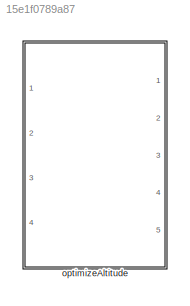
MODEL slx_15e1f0789a87
KIND library
CONFIG AbsTol = auto
CONFIG EnableMultiTasking = off
CONFIG FixedStep = auto
CONFIG MaxStep = auto
CONFIG MinStep = auto
CONFIG RelTol = 1e-3
CONFIG SampleTimeConstraint = Unconstrained
CONFIG SolverName = VariableStepAuto
CONFIG StartTime = 0.0
CONFIG StopTime = 10.0
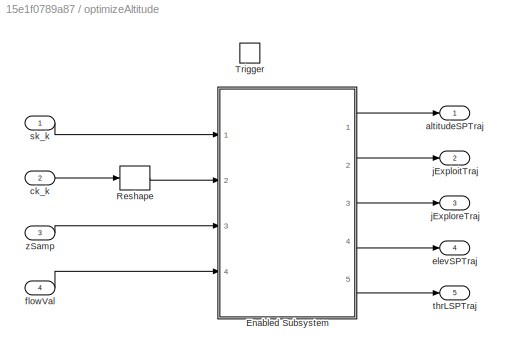
BLOCK [SubSystem] optimizeAltitude
  Ports = [4, 5, 0, 1]
  RequestExecContextInheritance = off
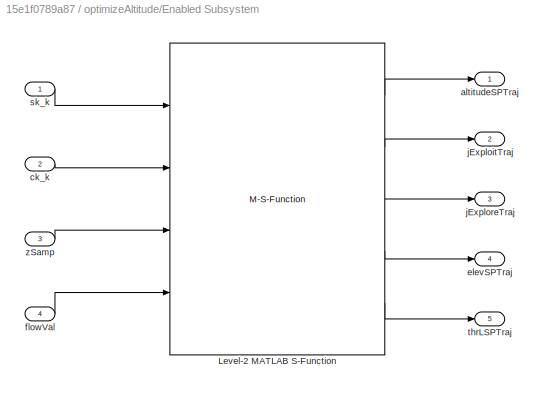
BLOCK [SubSystem] optimizeAltitude/Enabled Subsystem
  Ports = [4, 5]
  RequestExecContextInheritance = off
  TreatAsAtomicUnit = on
BLOCK [M-S-Function] optimizeAltitude/Enabled Subsystem/Level-2 MATLAB S-Function
  FunctionName = optimizeAltitude_Lvl2SFun
  Parameters = mpckfgp,hiLvlCtrl
  Ports = [4, 5]
BLOCK [Outport] optimizeAltitude/Enabled Subsystem/altitudeSPTraj
BLOCK [Inport] optimizeAltitude/Enabled Subsystem/ck_k
  Port = 2
BLOCK [Outport] optimizeAltitude/Enabled Subsystem/elevSPTraj
  Port = 4
BLOCK [Inport] optimizeAltitude/Enabled Subsystem/flowVal
  Port = 4
BLOCK [Outport] optimizeAltitude/Enabled Subsystem/jExploitTraj
  Port = 2
BLOCK [Outport] optimizeAltitude/Enabled Subsystem/jExploreTraj
  Port = 3
BLOCK [Inport] optimizeAltitude/Enabled Subsystem/sk_k
BLOCK [Outport] optimizeAltitude/Enabled Subsystem/thrLSPTraj
  Port = 5
BLOCK [Inport] optimizeAltitude/Enabled Subsystem/zSamp
  Port = 3
BLOCK [Reshape] optimizeAltitude/Reshape
  OutputDimensionality = Column vector (2-D)
  Ports = [1, 1]
BLOCK [TriggerPort] optimizeAltitude/Trigger
  Ports = []
  StatesWhenEnabling = held
  VariantControl = Variant
BLOCK [Outport] optimizeAltitude/altitudeSPTraj
BLOCK [Inport] optimizeAltitude/ck_k
  Port = 2
BLOCK [Outport] optimizeAltitude/elevSPTraj
  Port = 4
BLOCK [Inport] optimizeAltitude/flowVal
  Port = 4
BLOCK [Outport] optimizeAltitude/jExploitTraj
  Port = 2
BLOCK [Outport] optimizeAltitude/jExploreTraj
  Port = 3
BLOCK [Inport] optimizeAltitude/sk_k
BLOCK [Outport] optimizeAltitude/thrLSPTraj
  Port = 5
BLOCK [Inport] optimizeAltitude/zSamp
  Port = 3
LINE optimizeAltitude/Enabled Subsystem/Level-2 MATLAB S-Function:1 -> optimizeAltitude/Enabled Subsystem/altitudeSPTraj:1
LINE optimizeAltitude/Enabled Subsystem/Level-2 MATLAB S-Function:2 -> optimizeAltitude/Enabled Subsystem/jExploitTraj:1
LINE optimizeAltitude/Enabled Subsystem/Level-2 MATLAB S-Function:3 -> optimizeAltitude/Enabled Subsystem/jExploreTraj:1
LINE optimizeAltitude/Enabled Subsystem/Level-2 MATLAB S-Function:4 -> optimizeAltitude/Enabled Subsystem/elevSPTraj:1
LINE optimizeAltitude/Enabled Subsystem/Level-2 MATLAB S-Function:5 -> optimizeAltitude/Enabled Subsystem/thrLSPTraj:1
LINE optimizeAltitude/Enabled Subsystem/ck_k:1 -> optimizeAltitude/Enabled Subsystem/Level-2 MATLAB S-Function:2
LINE optimizeAltitude/Enabled Subsystem/flowVal:1 -> optimizeAltitude/Enabled Subsystem/Level-2 MATLAB S-Function:4
LINE optimizeAltitude/Enabled Subsystem/sk_k:1 -> optimizeAltitude/Enabled Subsystem/Level-2 MATLAB S-Function:1
LINE optimizeAltitude/Enabled Subsystem/zSamp:1 -> optimizeAltitude/Enabled Subsystem/Level-2 MATLAB S-Function:3
LINE optimizeAltitude/Enabled Subsystem:1 -> optimizeAltitude/altitudeSPTraj:1
LINE optimizeAltitude/Enabled Subsystem:2 -> optimizeAltitude/jExploitTraj:1
LINE optimizeAltitude/Enabled Subsystem:3 -> optimizeAltitude/jExploreTraj:1
LINE optimizeAltitude/Enabled Subsystem:4 -> optimizeAltitude/elevSPTraj:1
LINE optimizeAltitude/Enabled Subsystem:5 -> optimizeAltitude/thrLSPTraj:1
LINE optimizeAltitude/Reshape:1 -> optimizeAltitude/Enabled Subsystem:2
LINE optimizeAltitude/ck_k:1 -> optimizeAltitude/Reshape:1
LINE optimizeAltitude/flowVal:1 -> optimizeAltitude/Enabled Subsystem:4
LINE optimizeAltitude/sk_k:1 -> optimizeAltitude/Enabled Subsystem:1
LINE optimizeAltitude/zSamp:1 -> optimizeAltitude/Enabled Subsystem:3
